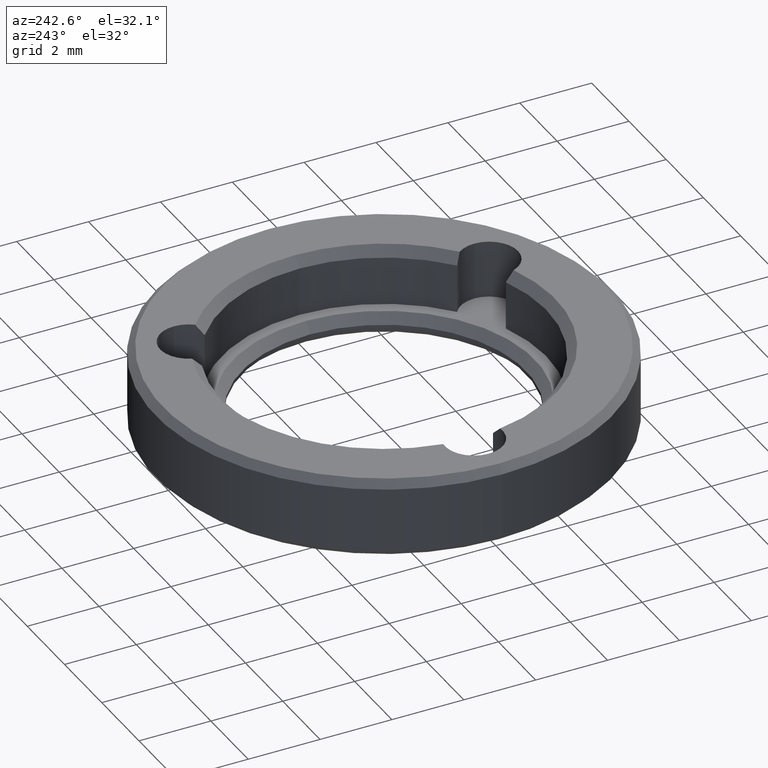
[diagram: clean part render]
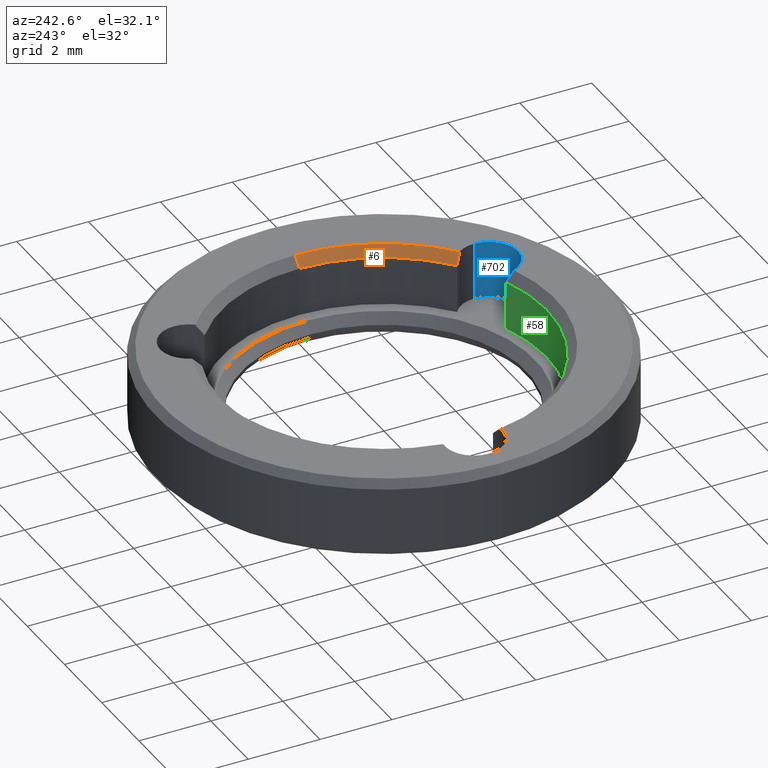
[diagram: same view with three faces highlighted in distinct colors, each labeled with its STEP entity id]
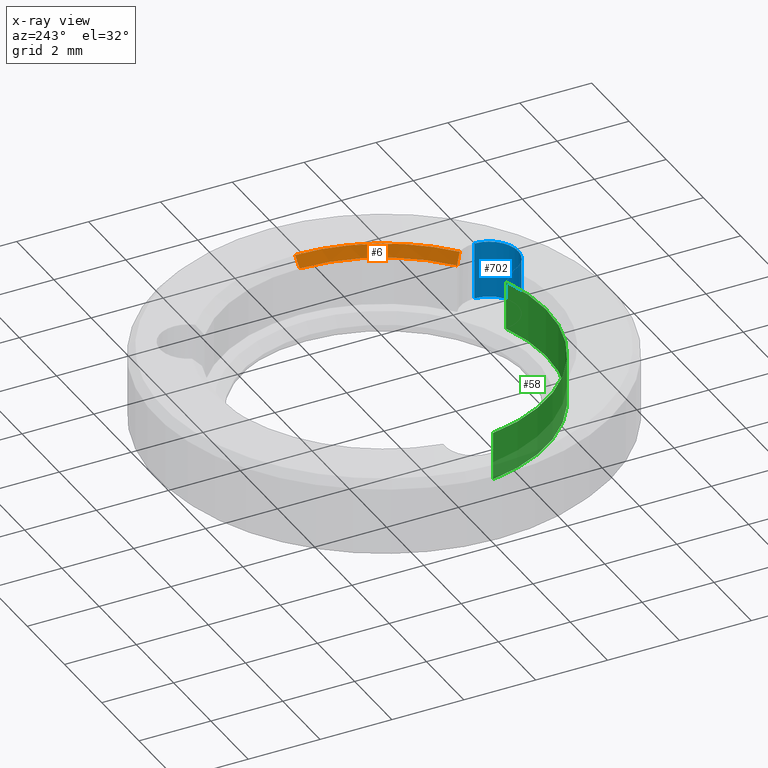
[diagram: x-ray of the same camera — body ghosted, the three highlighted faces saturated]
A machine part, auxiliary view with three faces highlighted in distinct colors.
The next image is the same camera in x-ray (body ghosted, the three faces saturated) — at least one of them is partly hidden behind the body in this view.
Their STEP definitions:

[orange] entity #6 — the highlighted conical surface has half-angle 45 deg.
#6 = ADVANCED_FACE ( 'NONE', ( #176 ), #232, .F. ) ;
#8 = CARTESIAN_POINT ( 'NONE',  ( 2.854015513596384501, -3.511441363336595511, 1.949999999999996181 ) ) ;
#14 = AXIS2_PLACEMENT_3D ( 'NONE', #631, #621, #826 ) ;
#18 = VECTOR ( 'NONE', #400, 1000.000000000000000 ) ;
#42 = CARTESIAN_POINT ( 'NONE',  ( 4.525000000000000355, 0.000000000000000000, 1.949999999999996403 ) ) ;
#43 = DIRECTION ( 'NONE',  ( 1.000000000000000000, 0.000000000000000000, 0.000000000000000000 ) ) ;
#113 = LINE ( 'NONE', #42, #18 ) ;
#144 = CARTESIAN_POINT ( 'NONE',  ( 4.525000000000000355, 0.000000000000000000, 1.949999999999996403 ) ) ;
#157 = EDGE_CURVE ( 'NONE', #251, #799, #455, .T. ) ;
#176 = FACE_OUTER_BOUND ( 'NONE', #882, .T. ) ;
#212 = AXIS2_PLACEMENT_3D ( 'NONE', #579, #783, #568 ) ;
#225 = EDGE_CURVE ( 'NONE', #443, #674, #311, .T. ) ;
#230 = CARTESIAN_POINT ( 'NONE',  ( 4.775000000000006573, 0.000000000000000000, 2.200000000000000178 ) ) ;
#232 = CONICAL_SURFACE ( 'NONE', #539, 4.525000000000000355, 0.7853981633974533860 ) ;
#251 = VERTEX_POINT ( 'NONE', #230 ) ;
#262 = EDGE_CURVE ( 'NONE', #799, #443, #557, .T. ) ;
#300 = CARTESIAN_POINT ( 'NONE',  ( 2.987666832499100700, -3.616177005496755914, 2.115723411230573614 ) ) ;
#311 = CIRCLE ( 'NONE', #212, 4.525000000000000355 ) ;
#400 = DIRECTION ( 'NONE',  ( 0.7071067811865512365, 0.000000000000000000, 0.7071067811865439090 ) ) ;
#439 = CARTESIAN_POINT ( 'NONE',  ( 3.039959377531153528, -3.682291675432632250, 2.200000000000000178 ) ) ;
#443 = VERTEX_POINT ( 'NONE', #733 ) ;
#453 = CARTESIAN_POINT ( 'NONE',  ( 0.000000000000000000, 0.000000000000000000, 1.949999999999996403 ) ) ;
#455 = CIRCLE ( 'NONE', #14, 4.775000000000006573 ) ;
#468 = EDGE_CURVE ( 'NONE', #674, #251, #113, .T. ) ;
#539 = AXIS2_PLACEMENT_3D ( 'NONE', #453, #735, #43 ) ;
#557 = B_SPLINE_CURVE_WITH_KNOTS ( 'NONE', 3,
 ( #439, #300, #591, #8 ),
 .UNSPECIFIED., .F., .F.,
 ( 4, 4 ),
 ( 2.810861384293374470E-07, 0.0003556188827150423191 ),
 .UNSPECIFIED. ) ;
#568 = DIRECTION ( 'NONE',  ( 1.000000000000000000, 0.000000000000000000, 0.000000000000000000 ) ) ;
#579 = CARTESIAN_POINT ( 'NONE',  ( 0.000000000000000000, 0.000000000000000000, 1.949999999999996403 ) ) ;
#584 = ORIENTED_EDGE ( 'NONE', *, *, #225, .F. ) ;
#591 = CARTESIAN_POINT ( 'NONE',  ( 2.925950478982845215, -3.559048794552098993, 2.032314742619950820 ) ) ;
#594 = ORIENTED_EDGE ( 'NONE', *, *, #468, .F. ) ;
#621 = DIRECTION ( 'NONE',  ( -0.000000000000000000, -0.000000000000000000, -1.000000000000000000 ) ) ;
#631 = CARTESIAN_POINT ( 'NONE',  ( 0.000000000000000000, 0.000000000000000000, 2.200000000000000178 ) ) ;
#674 = VERTEX_POINT ( 'NONE', #144 ) ;
#708 = CARTESIAN_POINT ( 'NONE',  ( 3.039959377531153528, -3.682291675432632250, 2.200000000000000178 ) ) ;
#733 = CARTESIAN_POINT ( 'NONE',  ( 2.854015513596384501, -3.511441363336595511, 1.949999999999996181 ) ) ;
#735 = DIRECTION ( 'NONE',  ( 0.000000000000000000, 0.000000000000000000, 1.000000000000000000 ) ) ;
#783 = DIRECTION ( 'NONE',  ( 0.000000000000000000, 0.000000000000000000, 1.000000000000000000 ) ) ;
#799 = VERTEX_POINT ( 'NONE', #708 ) ;
#803 = ORIENTED_EDGE ( 'NONE', *, *, #157, .F. ) ;
#826 = DIRECTION ( 'NONE',  ( 1.000000000000000000, 0.000000000000000000, 0.000000000000000000 ) ) ;
#882 = EDGE_LOOP ( 'NONE', ( #594, #584, #887, #803 ) ) ;
#887 = ORIENTED_EDGE ( 'NONE', *, *, #262, .F. ) ;

[blue] entity #702 — the highlighted cylindrical surface (edge-blend (fillet) strip) has radius 0.8 mm, axis along (0, -0, 1).
#13 = VERTEX_POINT ( 'NONE', #448 ) ;
#29 = CARTESIAN_POINT ( 'NONE',  ( 1.668978446303088559, -4.473827885131008486, 2.200000000000000178 ) ) ;
#32 = VECTOR ( 'NONE', #644, 1000.000000000000000 ) ;
#76 = CARTESIAN_POINT ( 'NONE',  ( 2.412500000000020517, -4.178572573259906164, 2.200000000000000178 ) ) ;
#121 = LINE ( 'NONE', #832, #827 ) ;
#133 = CIRCLE ( 'NONE', #486, 0.8000000000000009326 ) ;
#159 = VERTEX_POINT ( 'NONE', #476 ) ;
#170 = ORIENTED_EDGE ( 'NONE', *, *, #565, .F. ) ;
#207 = CARTESIAN_POINT ( 'NONE',  ( 1.613989667750802770, -4.227370619237643012, 1.949999999999996181 ) ) ;
#222 = CYLINDRICAL_SURFACE ( 'NONE', #499, 0.8000000000000008216 ) ;
#258 = DIRECTION ( 'NONE',  ( -0.5000000000000039968, 0.8660254037844362651, 0.000000000000000000 ) ) ;
#301 = ORIENTED_EDGE ( 'NONE', *, *, #665, .F. ) ;
#358 = CIRCLE ( 'NONE', #560, 0.8000000000000008216 ) ;
#371 = CARTESIAN_POINT ( 'NONE',  ( 1.613989667750802770, -4.227370619237641236, 1.400000000000000133 ) ) ;
#376 = DIRECTION ( 'NONE',  ( 0.000000000000000000, -0.000000000000000000, 1.000000000000000000 ) ) ;
#383 = EDGE_CURVE ( 'NONE', #614, #159, #498, .T. ) ;
#402 = DIRECTION ( 'NONE',  ( 0.000000000000000000, -0.000000000000000000, 1.000000000000000000 ) ) ;
#420 = CARTESIAN_POINT ( 'NONE',  ( 2.412500000000020517, -4.178572573259906164, -1.662741699796955741 ) ) ;
#442 = DIRECTION ( 'NONE',  ( 1.000000000000000000, 0.000000000000000000, 0.000000000000000000 ) ) ;
#448 = CARTESIAN_POINT ( 'NONE',  ( 3.212500000000021672, -4.178572573259906164, 2.200000000000000178 ) ) ;
#450 = CARTESIAN_POINT ( 'NONE',  ( 2.412500000000020517, -4.178572573259906164, 0.6000000000000003109 ) ) ;
#461 = CARTESIAN_POINT ( 'NONE',  ( 3.212500000000021672, -4.178572573259906164, 0.6000000000000003109 ) ) ;
#464 = VERTEX_POINT ( 'NONE', #461 ) ;
#476 = CARTESIAN_POINT ( 'NONE',  ( 1.668978446303088559, -4.473827885131008486, 2.200000000000000178 ) ) ;
#486 = AXIS2_PLACEMENT_3D ( 'NONE', #76, #881, #258 ) ;
#498 = B_SPLINE_CURVE_WITH_KNOTS ( 'NONE', 3,
 ( #729, #663, #675, #29 ),
 .UNSPECIFIED., .F., .F.,
 ( 4, 4 ),
 ( 2.877911722377014543E-07, 0.0003556255877488503328 ),
 .UNSPECIFIED. ) ;
#499 = AXIS2_PLACEMENT_3D ( 'NONE', #420, #376, #842 ) ;
#500 = ORIENTED_EDGE ( 'NONE', *, *, #813, .T. ) ;
#560 = AXIS2_PLACEMENT_3D ( 'NONE', #450, #677, #442 ) ;
#565 = EDGE_CURVE ( 'NONE', #464, #13, #121, .T. ) ;
#583 = FACE_OUTER_BOUND ( 'NONE', #743, .T. ) ;
#614 = VERTEX_POINT ( 'NONE', #207 ) ;
#639 = CARTESIAN_POINT ( 'NONE',  ( 1.613989667750802770, -4.227370619237641236, 0.6000000000000003109 ) ) ;
#644 = DIRECTION ( 'NONE',  ( -0.000000000000000000, 0.000000000000000000, -1.000000000000000000 ) ) ;
#646 = ORIENTED_EDGE ( 'NONE', *, *, #383, .T. ) ;
#651 = LINE ( 'NONE', #371, #32 ) ;
#663 = CARTESIAN_POINT ( 'NONE',  ( 1.619251429899119188, -4.313471842290415914, 2.032314742619942827 ) ) ;
#664 = VERTEX_POINT ( 'NONE', #639 ) ;
#665 = EDGE_CURVE ( 'NONE', #614, #664, #651, .T. ) ;
#675 = CARTESIAN_POINT ( 'NONE',  ( 1.637867735091818933, -4.395483877736762857, 2.115723411230565176 ) ) ;
#677 = DIRECTION ( 'NONE',  ( -0.000000000000000000, -0.000000000000000000, -1.000000000000000000 ) ) ;
#702 = ADVANCED_FACE ( 'NONE', ( #583 ), #222, .F. ) ;
#729 = CARTESIAN_POINT ( 'NONE',  ( 1.613989667750802770, -4.227370619237643012, 1.949999999999996181 ) ) ;
#743 = EDGE_LOOP ( 'NONE', ( #170, #875, #301, #646, #500 ) ) ;
#813 = EDGE_CURVE ( 'NONE', #159, #13, #133, .T. ) ;
#827 = VECTOR ( 'NONE', #402, 1000.000000000000000 ) ;
#832 = CARTESIAN_POINT ( 'NONE',  ( 3.212500000000021227, -4.178572573259906164, -1.662741699796955741 ) ) ;
#842 = DIRECTION ( 'NONE',  ( 1.000000000000000000, 0.000000000000000000, 0.000000000000000000 ) ) ;
#847 = EDGE_CURVE ( 'NONE', #464, #664, #358, .T. ) ;
#875 = ORIENTED_EDGE ( 'NONE', *, *, #847, .T. ) ;
#881 = DIRECTION ( 'NONE',  ( 0.000000000000000000, 0.000000000000000000, 1.000000000000000000 ) ) ;

[green] entity #58 — the highlighted cylindrical surface (partial cylindrical patch) has radius 4.525 mm, axis along (-0, -0, 1).
#2 = DIRECTION ( 'NONE',  ( 1.000000000000000000, 0.000000000000000000, 0.000000000000000000 ) ) ;
#9 = ORIENTED_EDGE ( 'NONE', *, *, #756, .T. ) ;
#32 = VECTOR ( 'NONE', #644, 1000.000000000000000 ) ;
#58 = ADVANCED_FACE ( 'NONE', ( #755 ), #625, .F. ) ;
#70 = DIRECTION ( 'NONE',  ( 0.000000000000000000, 0.000000000000000000, 1.000000000000000000 ) ) ;
#139 = DIRECTION ( 'NONE',  ( -0.000000000000000000, -0.000000000000000000, 1.000000000000000000 ) ) ;
#193 = ORIENTED_EDGE ( 'NONE', *, *, #692, .T. ) ;
#207 = CARTESIAN_POINT ( 'NONE',  ( 1.613989667750802770, -4.227370619237643012, 1.949999999999996181 ) ) ;
#223 = CARTESIAN_POINT ( 'NONE',  ( 0.000000000000000000, 0.000000000000000000, 0.6000000000000000888 ) ) ;
#234 = VERTEX_POINT ( 'NONE', #360 ) ;
#238 = DIRECTION ( 'NONE',  ( 1.000000000000000000, 0.000000000000000000, 0.000000000000000000 ) ) ;
#259 = VERTEX_POINT ( 'NONE', #495 ) ;
#268 = CARTESIAN_POINT ( 'NONE',  ( 0.000000000000000000, 0.000000000000000000, 0.6000000000000000888 ) ) ;
#298 = LINE ( 'NONE', #846, #734 ) ;
#328 = EDGE_CURVE ( 'NONE', #234, #664, #581, .T. ) ;
#360 = CARTESIAN_POINT ( 'NONE',  ( -4.468005181347147747, -0.7159292559010418389, 0.6000000000000003109 ) ) ;
#371 = CARTESIAN_POINT ( 'NONE',  ( 1.613989667750802770, -4.227370619237641236, 1.400000000000000133 ) ) ;
#395 = ORIENTED_EDGE ( 'NONE', *, *, #328, .F. ) ;
#427 = ORIENTED_EDGE ( 'NONE', *, *, #665, .T. ) ;
#459 = AXIS2_PLACEMENT_3D ( 'NONE', #223, #775, #238 ) ;
#483 = DIRECTION ( 'NONE',  ( -0.000000000000000000, -0.000000000000000000, 1.000000000000000000 ) ) ;
#494 = EDGE_LOOP ( 'NONE', ( #9, #427, #395, #193 ) ) ;
#495 = CARTESIAN_POINT ( 'NONE',  ( -4.468005181347150412, -0.7159292559010430601, 1.949999999999996403 ) ) ;
#581 = CIRCLE ( 'NONE', #459, 4.525000000000000355 ) ;
#586 = AXIS2_PLACEMENT_3D ( 'NONE', #268, #483, #694 ) ;
#614 = VERTEX_POINT ( 'NONE', #207 ) ;
#615 = CIRCLE ( 'NONE', #865, 4.525000000000000355 ) ;
#625 = CYLINDRICAL_SURFACE ( 'NONE', #586, 4.525000000000000355 ) ;
#639 = CARTESIAN_POINT ( 'NONE',  ( 1.613989667750802770, -4.227370619237641236, 0.6000000000000003109 ) ) ;
#644 = DIRECTION ( 'NONE',  ( -0.000000000000000000, 0.000000000000000000, -1.000000000000000000 ) ) ;
#651 = LINE ( 'NONE', #371, #32 ) ;
#664 = VERTEX_POINT ( 'NONE', #639 ) ;
#665 = EDGE_CURVE ( 'NONE', #614, #664, #651, .T. ) ;
#692 = EDGE_CURVE ( 'NONE', #234, #259, #298, .T. ) ;
#694 = DIRECTION ( 'NONE',  ( 1.000000000000000000, 0.000000000000000000, 0.000000000000000000 ) ) ;
#734 = VECTOR ( 'NONE', #139, 1000.000000000000000 ) ;
#755 = FACE_OUTER_BOUND ( 'NONE', #494, .T. ) ;
#756 = EDGE_CURVE ( 'NONE', #259, #614, #615, .T. ) ;
#775 = DIRECTION ( 'NONE',  ( 0.000000000000000000, 0.000000000000000000, 1.000000000000000000 ) ) ;
#778 = CARTESIAN_POINT ( 'NONE',  ( 0.000000000000000000, 0.000000000000000000, 1.949999999999996403 ) ) ;
#846 = CARTESIAN_POINT ( 'NONE',  ( -4.468005181347147747, -0.7159292559010419499, 1.400000000000000133 ) ) ;
#865 = AXIS2_PLACEMENT_3D ( 'NONE', #778, #70, #2 ) ;